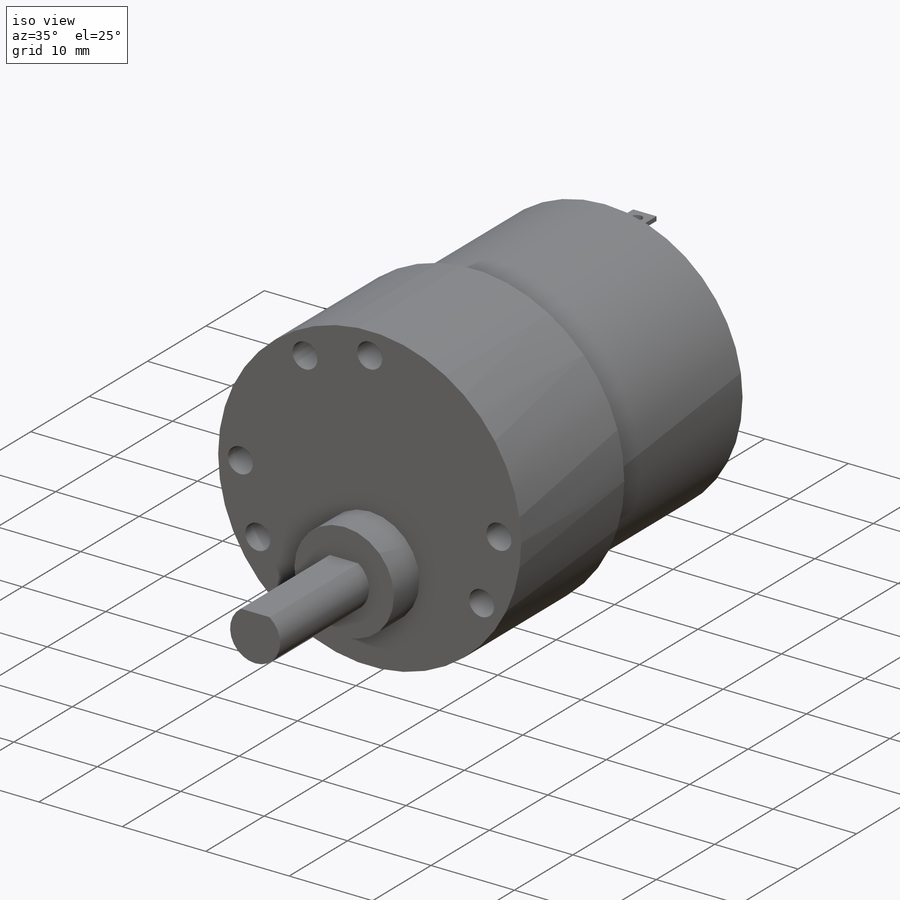
[diagram: iso view]
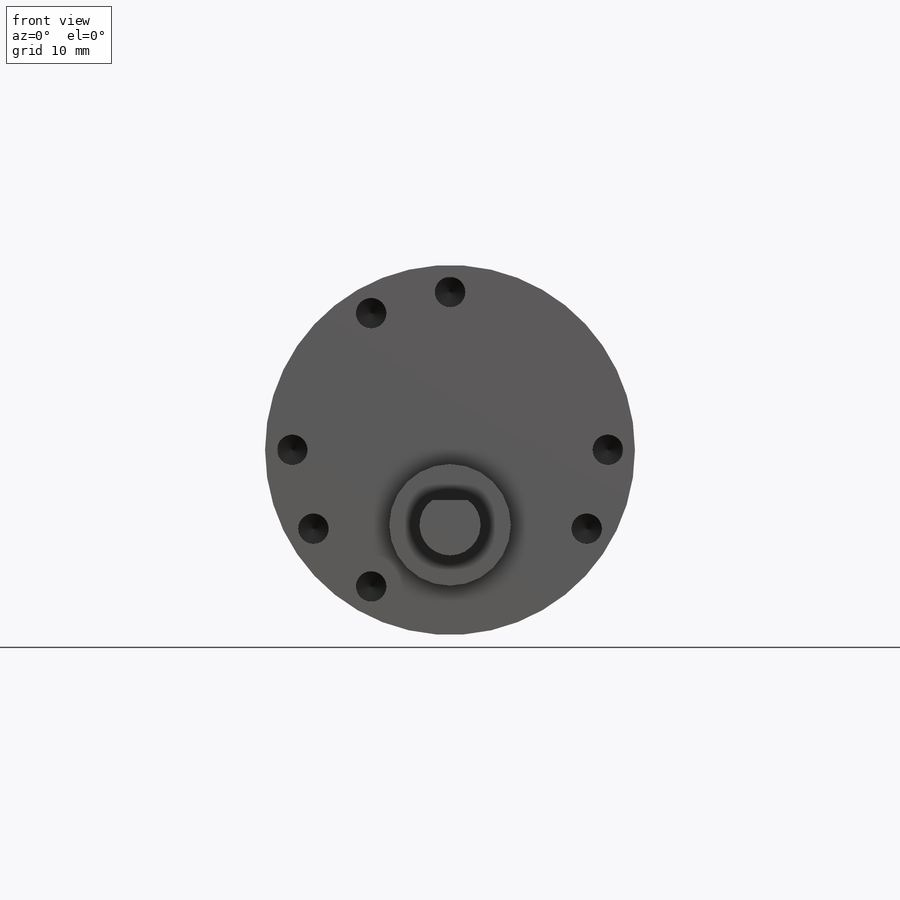
[diagram: front view]
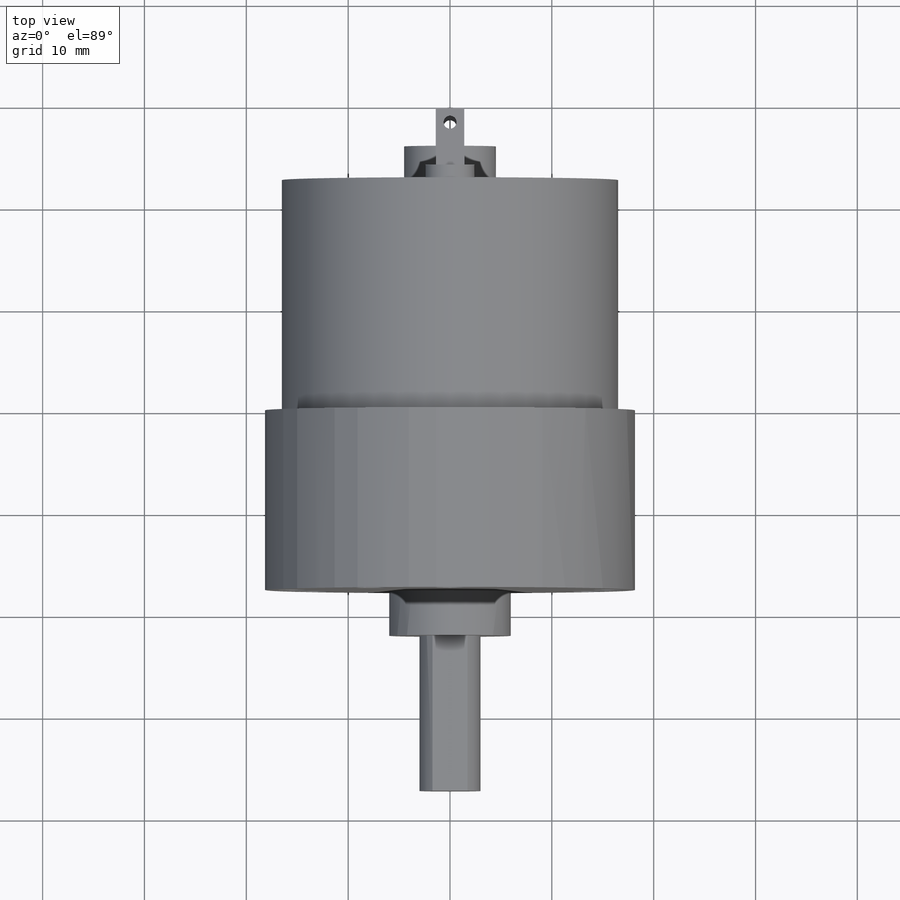
[diagram: top view]
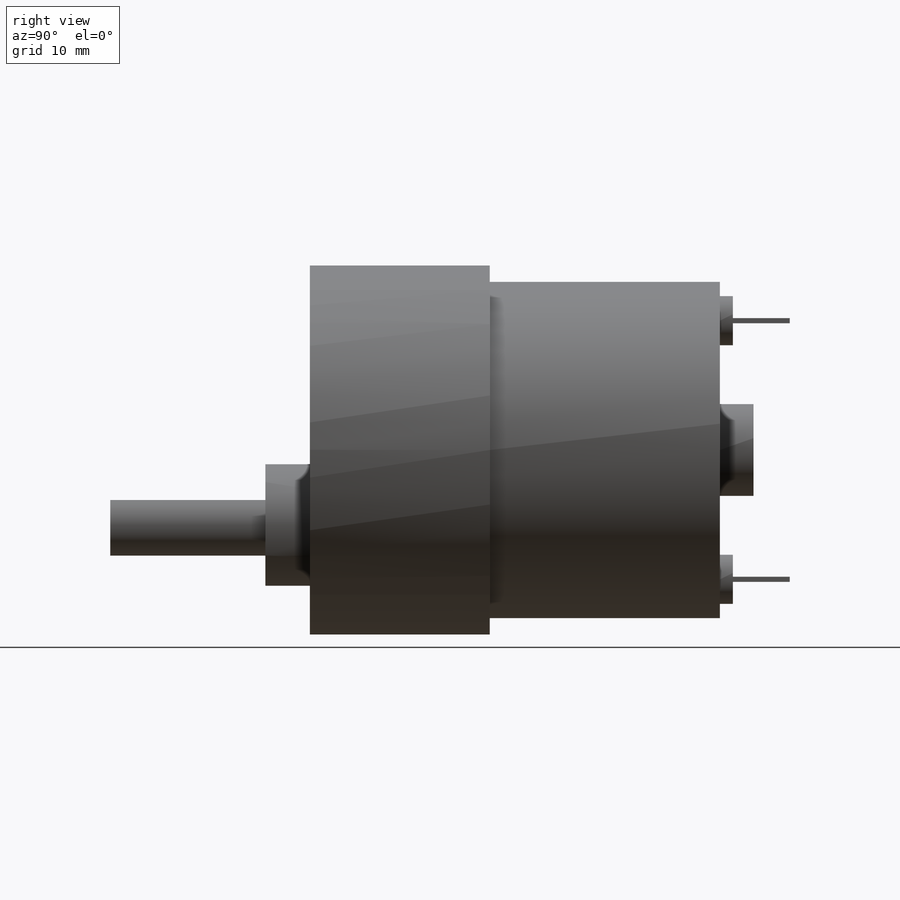
[diagram: right view]
SOLIDWORKS PART (.sldprt)
format: sldprt  version: not decoded by parser v0  size: 303,104 bytes
history: native  units: mm
features: sketch x10, extrude x8, plane x3, pattern_circular x2, material x1, hole x1 (+13 scaffold rows collapsed)
feature tree (38):
  scaffold x13  (default folders/planes/origin — collapsed)
  material  "Material <not specified>"
  sketch  "Sketch1"  dims[D1=36.322mm]
  extrude  "Boss-Extrude1"  Depth=17.653mm
  sketch  "Sketch2"  dims[D1=33.02mm]
  extrude  "Boss-Extrude2"  Depth=22.606mm
  sketch  "Sketch3"  dims[D1=9.017mm]
  extrude  "Boss-Extrude3"  Depth=3.302mm
  sketch  "Sketch4"  dims[D1=4.826mm D2=4.826mm D3=12.7mm D4=12.7mm]
  extrude  "Boss-Extrude4"  Depth=1.27mm
  sketch  "Sketch5"  dims[D1=11.938mm D2=7.366mm]
  extrude  "Boss-Extrude5"  Depth=4.3688mm
  sketch  "Sketch6"  dims[D1=6.0mm D2=2.461mm]
  extrude  "Boss-Extrude6"  Depth=15.24mm
  extrude  "Axis3"  [1 undecoded]
  plane  "Plane1"
  plane  "Plane2"
  plane  "Plane3"
  sketch  "Sketch8"  dims[D4=1.27mm D1=2.794mm D2=1.397mm D3=5.588mm D5=1.397mm]
  extrude  "Boss-Extrude7"  Depth=0.508mm
  pattern_circular  "CirPattern1"  Count=2 Angle=360deg
  sketch  "Sketch9"  dims[D1=30.988mm]
  hole  "Ø3.0mm Dowel Hole1"  Diameter=3mm Depth=10.16mm
  sketch  "Sketch11"
  sketch  "Sketch12"  dims[hole-wizard template sketch: 50 standard entries collapsed; hole parameters above]
  pattern_circular  "CirPattern2"  Count=12 Angle=360deg
decode coverage: 19 of 21 modeling features carry decoded parameters
note: ~ marks probable driven/reference dimensions
note: 1 parameter value undecoded
note: suppression state not decoded; provenance and decode notes live in map.json
